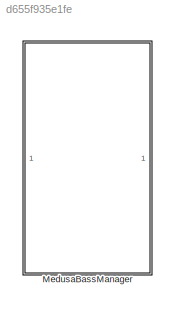
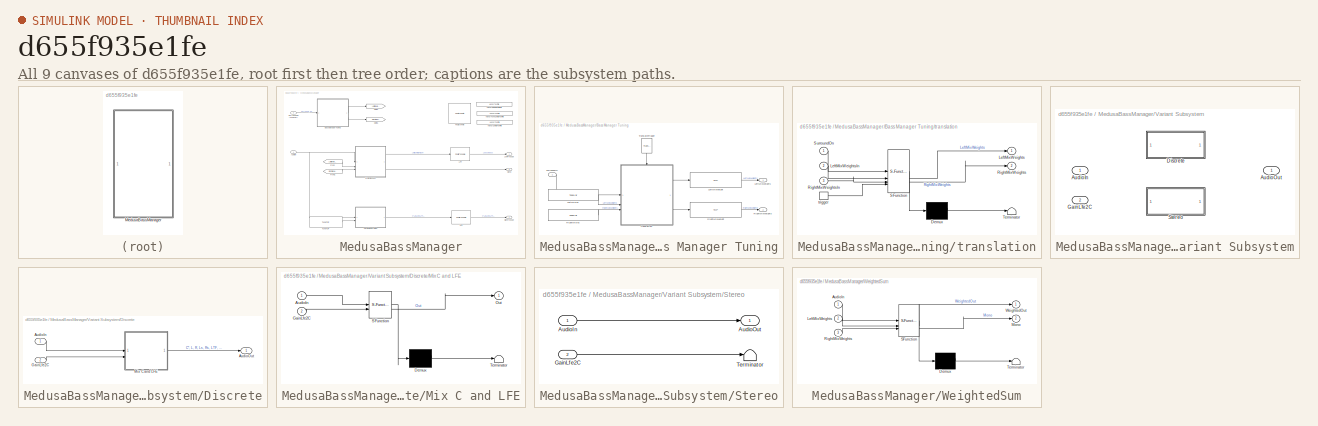
[diagram: thumbnail index - all 9 canvases of the model, root first then tree order]
MODEL slx_d655f935e1fe
KIND library
CONFIG AbsTol = auto
CONFIG EnableMultiTasking = off
CONFIG FixedStep = auto
CONFIG MaxStep = auto
CONFIG MinStep = auto
CONFIG RelTol = 1e-3
CONFIG SampleTimeConstraint = Unconstrained
CONFIG SolverName = VariableStepAuto
CONFIG StartTime = 0.0
CONFIG StopTime = 10.0
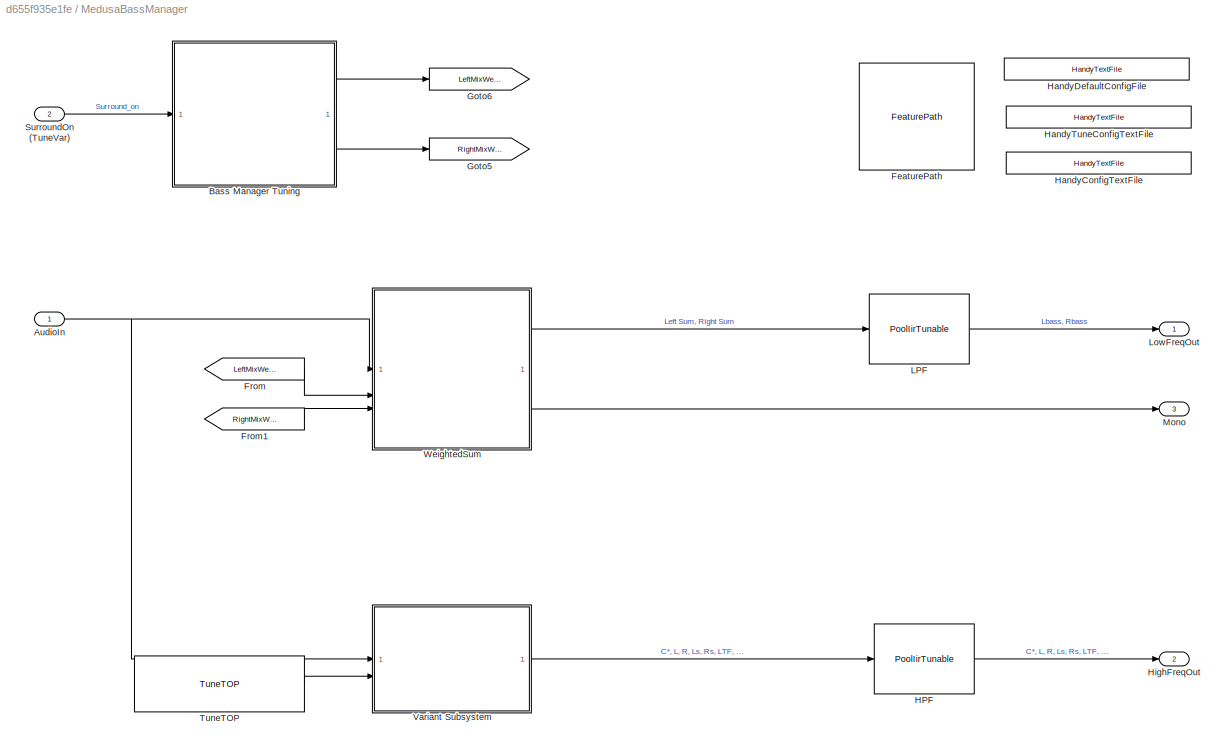
BLOCK [SubSystem] MedusaBassManager
  FunctionWithSeparateData = on
  LibrarySourceBlock = BassManager/MedusaBassManager
  RTWFileName = MedusaBassManager
  RTWFileNameOpts = User specified
  RTWSystemCode = Nonreusable function
BLOCK [Inport] MedusaBassManager/AudioIn
BLOCK [SubSystem] MedusaBassManager/Bass Manager Tuning
BLOCK [Reference] MedusaBassManager/Bass Manager Tuning/LeftMixIns  REF=TuneVar/TuneVar
  SourceBlock = TuneVar/TuneVar
  SourceProductName = Bose Talaria
  SourceType = Talaria Tune Variable
BLOCK [Reference] MedusaBassManager/Bass Manager Tuning/LeftMixWeight  REF=TOP/TOP
  SourceBlock = TOP/TOP
  SourceProductName = Bose Talaria
  SourceType = Talaria Target Overlay Parameter
BLOCK [Outport] MedusaBassManager/Bass Manager Tuning/LeftMixWeights
BLOCK [Reference] MedusaBassManager/Bass Manager Tuning/RightMixIns  REF=TuneVar/TuneVar
  SourceBlock = TuneVar/TuneVar
  SourceProductName = Bose Talaria
  SourceType = Talaria Tune Variable
BLOCK [Reference] MedusaBassManager/Bass Manager Tuning/RightMixWeight  REF=TOP/TOP
  SourceBlock = TOP/TOP
  SourceProductName = Bose Talaria
  SourceType = Talaria Target Overlay Parameter
BLOCK [Outport] MedusaBassManager/Bass Manager Tuning/RightMixWeights
  Port = 2
BLOCK [Reference] MedusaBassManager/Bass Manager Tuning/TranslateTrigger  REF=TuneVar/TranslateTrigger
  NameLocation = right
  SourceBlock = TuneVar/TranslateTrigger
  SourceProductName = Bose Talaria
  SourceType = Talaria Translate Trigger
BLOCK [Inport] MedusaBassManager/Bass Manager Tuning/surroundOn
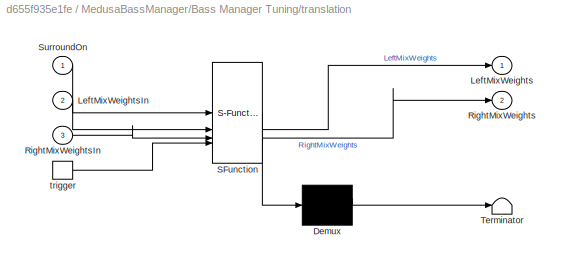
BLOCK [SubSystem] MedusaBassManager/Bass Manager Tuning/translation
  ErrorFcn = Stateflow.Translate.translate
  PermitHierarchicalResolution = ExplicitOnly
  SFBlockType = MATLAB Function
  TreatAsAtomicUnit = on
BLOCK [Demux] MedusaBassManager/Bass Manager Tuning/translation/ Demux 
  Outputs = 1
BLOCK [S-Function] MedusaBassManager/Bass Manager Tuning/translation/ SFunction 
  EnableBusSupport = on
  FunctionName = sf_sfun
  Parameters = NumInputs
  PortCounts = [4 3]
  SFcnIsStateOwnerBlock = off
  SFunctionDeploymentMode = off
  Tag = Stateflow S-Function 1
BLOCK [Terminator] MedusaBassManager/Bass Manager Tuning/translation/ Terminator 
BLOCK [Outport] MedusaBassManager/Bass Manager Tuning/translation/LeftMixWeights
  VectorParamsAs1DForOutWhenUnconnected = off
BLOCK [Inport] MedusaBassManager/Bass Manager Tuning/translation/LeftMixWeightsIn
  Port = 2
BLOCK [Outport] MedusaBassManager/Bass Manager Tuning/translation/RightMixWeights
  Port = 2
BLOCK [Inport] MedusaBassManager/Bass Manager Tuning/translation/RightMixWeightsIn
  Port = 3
BLOCK [Inport] MedusaBassManager/Bass Manager Tuning/translation/SurroundOn
BLOCK [TriggerPort] MedusaBassManager/Bass Manager Tuning/translation/trigger
  ShowOutputPort = on
  StatesWhenEnabling = held
  TriggerType = function-call
  VariantControl = Variant
BLOCK [Reference] MedusaBassManager/FeaturePath  REF=FeaturePath/FeaturePath
  SourceBlock = FeaturePath/FeaturePath
  SourceProductName = Bose Talaria
  SourceType = Talaria Feature Path
BLOCK [From] MedusaBassManager/From
  GotoTag = LeftMixWeights
BLOCK [From] MedusaBassManager/From1
  GotoTag = RightMixWeights
BLOCK [Goto] MedusaBassManager/Goto5
  GotoTag = RightMixWeights
BLOCK [Goto] MedusaBassManager/Goto6
  GotoTag = LeftMixWeights
BLOCK [Reference] MedusaBassManager/HPF  REF=PoolIir/PoolIirTunable
  LibrarySourceBlock = PoolIirBtc/PoolIirTunable
  SourceBlock = PoolIir/PoolIirTunable
  SourceProductName = Bose Blocklib
  SourceType = Bose Pool IIR Tunable
BLOCK [Reference] MedusaBassManager/HandyConfigTextFile  REF=HandyTextFile/HandyTextFile
  SourceBlock = HandyTextFile/HandyTextFile
  SourceProductName = Bose Talaria
  SourceType = Talaria Handy Text File
BLOCK [Reference] MedusaBassManager/HandyDefaultConfigFile  REF=HandyTextFile/HandyTextFile
  SourceBlock = HandyTextFile/HandyTextFile
  SourceProductName = Bose Talaria
  SourceType = Talaria Handy Text File
BLOCK [Reference] MedusaBassManager/HandyTuneConfigTextFile  REF=HandyTextFile/HandyTextFile
  SourceBlock = HandyTextFile/HandyTextFile
  SourceProductName = Bose Talaria
  SourceType = Talaria Handy Text File
BLOCK [Outport] MedusaBassManager/HighFreqOut
  Port = 2
  VectorParamsAs1DForOutWhenUnconnected = off
BLOCK [Reference] MedusaBassManager/LPF  REF=PoolIir/PoolIirTunable
  SourceBlock = PoolIir/PoolIirTunable
  SourceType = Bose Pool IIR Tunable
BLOCK [Outport] MedusaBassManager/LowFreqOut
  VectorParamsAs1DForOutWhenUnconnected = off
BLOCK [Outport] MedusaBassManager/Mono
  Port = 3
  VectorParamsAs1DForOutWhenUnconnected = off
BLOCK [Inport] MedusaBassManager/SurroundOn (TuneVar)
  Port = 2
BLOCK [Reference] MedusaBassManager/TuneTOP  REF=TuneVar/TuneTOP
  SourceBlock = TuneVar/TuneTOP
  SourceProductName = Bose Talaria
  SourceType = Talaria Trivial Tune TOP
BLOCK [SubSystem] MedusaBassManager/Variant Subsystem
  Variant = on
BLOCK [Inport] MedusaBassManager/Variant Subsystem/AudioIn
BLOCK [Outport] MedusaBassManager/Variant Subsystem/AudioOut
BLOCK [SubSystem] MedusaBassManager/Variant Subsystem/Discrete
  VariantControl = Config.NumInputs > 2
BLOCK [Inport] MedusaBassManager/Variant Subsystem/Discrete/AudioIn
BLOCK [Outport] MedusaBassManager/Variant Subsystem/Discrete/AudioOut
BLOCK [Inport] MedusaBassManager/Variant Subsystem/Discrete/GainLfe2C
  Port = 2
BLOCK [SubSystem] MedusaBassManager/Variant Subsystem/Discrete/Mix C and LFE
  ErrorFcn = Stateflow.Translate.translate
  LibrarySourceBlock = simulink/User-Defined\nFunctions/MATLAB Function
  PermitHierarchicalResolution = ExplicitOnly
  SFBlockType = MATLAB Function
  TreatAsAtomicUnit = on
BLOCK [Demux] MedusaBassManager/Variant Subsystem/Discrete/Mix C and LFE/ Demux 
  Outputs = 1
BLOCK [S-Function] MedusaBassManager/Variant Subsystem/Discrete/Mix C and LFE/ SFunction 
  EnableBusSupport = on
  FunctionName = sf_sfun
  Parameters = CenterIndex,LeftRightIndices,LfeIndex
  PortCounts = [2 2]
  SFcnIsStateOwnerBlock = off
  SFunctionDeploymentMode = off
  Tag = Stateflow S-Function 3
BLOCK [Terminator] MedusaBassManager/Variant Subsystem/Discrete/Mix C and LFE/ Terminator 
BLOCK [Inport] MedusaBassManager/Variant Subsystem/Discrete/Mix C and LFE/AudioIn
BLOCK [Inport] MedusaBassManager/Variant Subsystem/Discrete/Mix C and LFE/GainLfe2C
  Port = 2
BLOCK [Outport] MedusaBassManager/Variant Subsystem/Discrete/Mix C and LFE/Out
BLOCK [Inport] MedusaBassManager/Variant Subsystem/GainLfe2C
  Port = 2
BLOCK [SubSystem] MedusaBassManager/Variant Subsystem/Stereo
  VariantControl = Config.NumInputs == 2
BLOCK [Inport] MedusaBassManager/Variant Subsystem/Stereo/AudioIn
BLOCK [Outport] MedusaBassManager/Variant Subsystem/Stereo/AudioOut
BLOCK [Inport] MedusaBassManager/Variant Subsystem/Stereo/GainLfe2C
  Port = 2
BLOCK [Terminator] MedusaBassManager/Variant Subsystem/Stereo/Terminator
BLOCK [SubSystem] MedusaBassManager/WeightedSum
  ErrorFcn = Stateflow.Translate.translate
  LibrarySourceBlock = simulink/User-Defined\nFunctions/MATLAB Function
  PermitHierarchicalResolution = ExplicitOnly
  SFBlockType = MATLAB Function
  TreatAsAtomicUnit = on
BLOCK [Demux] MedusaBassManager/WeightedSum/ Demux 
  Outputs = 1
BLOCK [S-Function] MedusaBassManager/WeightedSum/ SFunction 
  EnableBusSupport = off
  FunctionName = sf_sfun
  Parameters = LeftIndices,RightIndices
  PortCounts = [3 3]
  SFcnIsStateOwnerBlock = off
  SFunctionDeploymentMode = off
  Tag = Stateflow S-Function 4
BLOCK [Terminator] MedusaBassManager/WeightedSum/ Terminator 
BLOCK [Inport] MedusaBassManager/WeightedSum/AudioIn
BLOCK [Inport] MedusaBassManager/WeightedSum/LeftMixWeights
  Port = 2
BLOCK [Outport] MedusaBassManager/WeightedSum/Mono
  Port = 2
BLOCK [Inport] MedusaBassManager/WeightedSum/RightMixWeights
  Port = 3
BLOCK [Outport] MedusaBassManager/WeightedSum/WeightedOut
CHART MedusaBassManager/Bass Manager Tuning/translation states=1 transitions=1
  STATE_LABEL 'eML_blk_kernel()'
  STATE_LABEL 'SCRIPT:\nfunction [LeftMixWeights, RightMixWeights]  = fcn(SurroundOn, LeftMixWeightsIn, RightMixWeightsIn, NumInputs)\n% Expected Order of Weights:\n% LeftMixWeightsIn = [L2L, Ls2L, Ltf2L, Ltb2L, C2L, Lfe2L]\n% RightMixWeightsIn = [R2R, Rs2R, Rtf2R, Rtb2R, C2R, Lfe2R]\n\nif (SurroundOn.Value == 3 || SurroundOn.Value == 4)\n    % Mix weights are only applicable for 5.1 and 5.1.4 inputs\n\n    % Check if an...<+1119ch>'
CHART MedusaBassManager/Variant Subsystem/Discrete/Mix C and LFE states=1 transitions=1
  STATE_LABEL 'eML_blk_kernel()'
  STATE_LABEL 'SCRIPT:\nfunction Out = AddLfeGain(AudioIn, GainLfe2C, CenterIndex, LfeIndex, LeftRightIndices)\n% Mix C and LFE components to generate C*\ncenter = AudioIn(:, CenterIndex);\nlfe = AudioIn(:, LfeIndex);\nmodifiedC = center + GainLfe2C*lfe;\n\n% Removing C and LFE components\nleftRightContent = AudioIn(:, LeftRightIndices);\n\n% Forming the HPF input\nOut = [modifiedC, leftRightContent];\n\nend'
CHART MedusaBassManager/WeightedSum states=1 transitions=1
  STATE_LABEL 'eML_blk_kernel()'
  STATE_LABEL "SCRIPT:\nfunction [WeightedOut, Mono] = WeightedSum(AudioIn, LeftMixWeights, RightMixWeights, LeftIndices, RightIndices)\n    LeftIn = AudioIn(:, LeftIndices);\n    LeftOut = LeftIn*LeftMixWeights';\n\n    RightIn = AudioIn(:, RightIndices);\n    RightOut = RightIn*RightMixWeights';\n\n    WeightedOut = [LeftOut RightOut];\n    Mono = mean(WeightedOut, 2);\nend"
CHART  states=0 transitions=0
CHART  states=0 transitions=0
CHART  states=0 transitions=0
